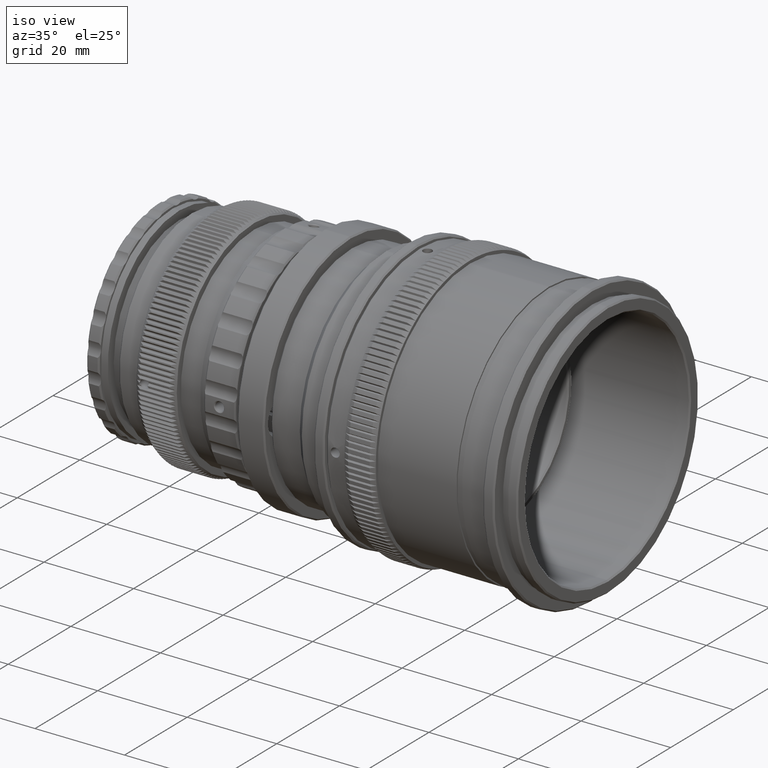
[diagram: clean part render]
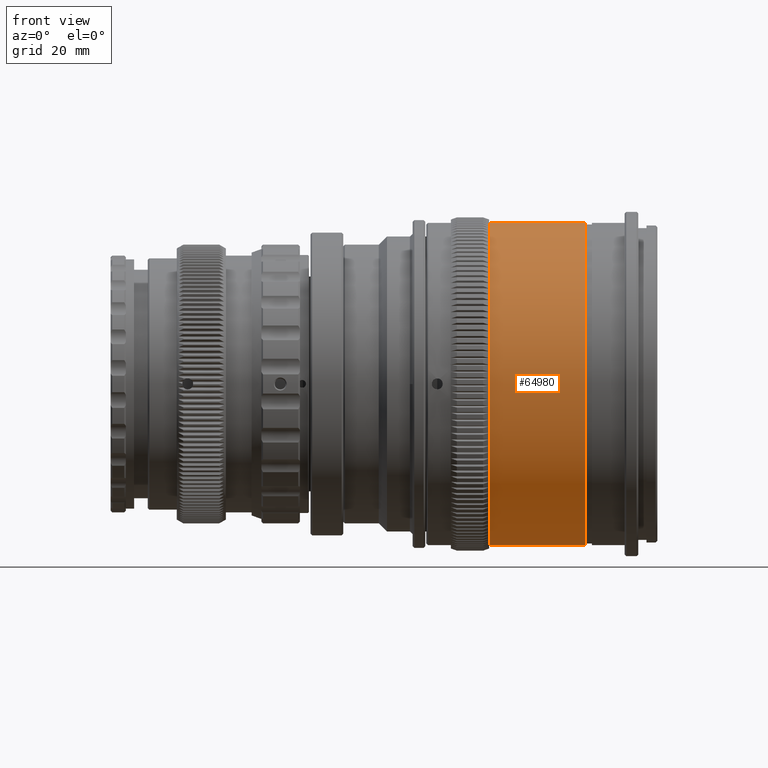
[diagram: tour spotlight — one face highlighted and labeled with its STEP entity id]
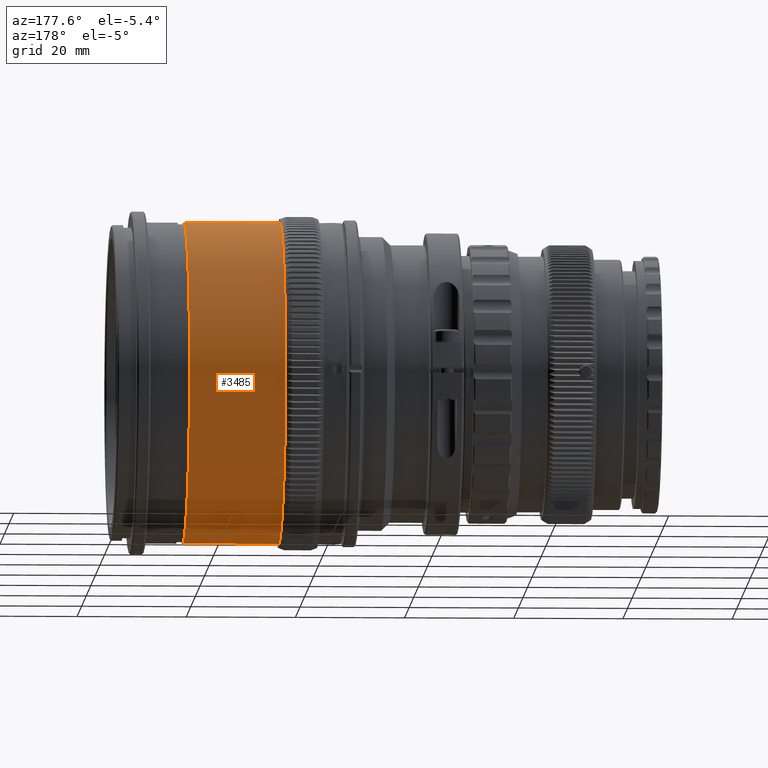
[diagram: tour spotlight — one face highlighted and labeled with its STEP entity id]
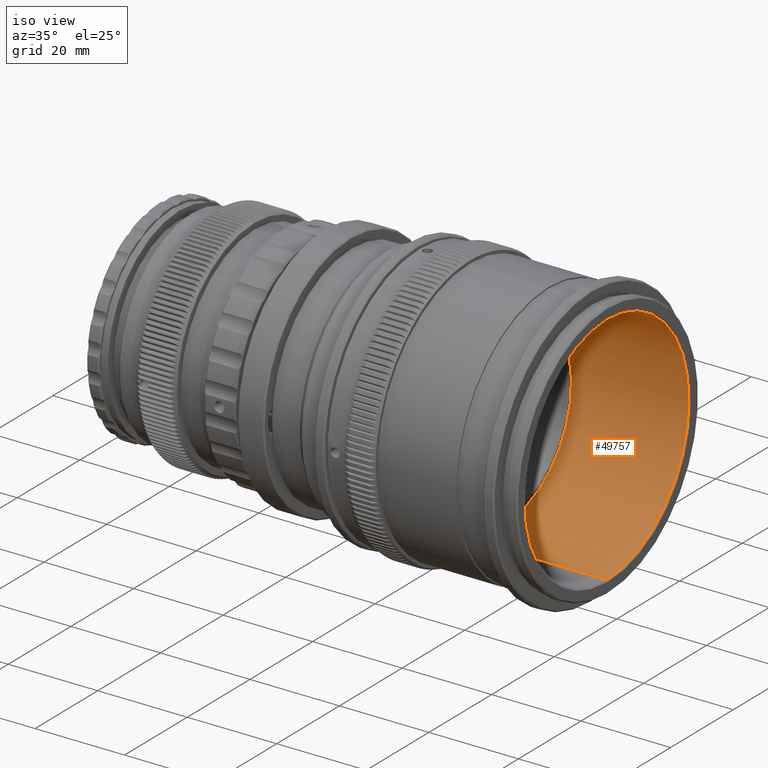
[diagram: tour spotlight — one face highlighted and labeled with its STEP entity id]
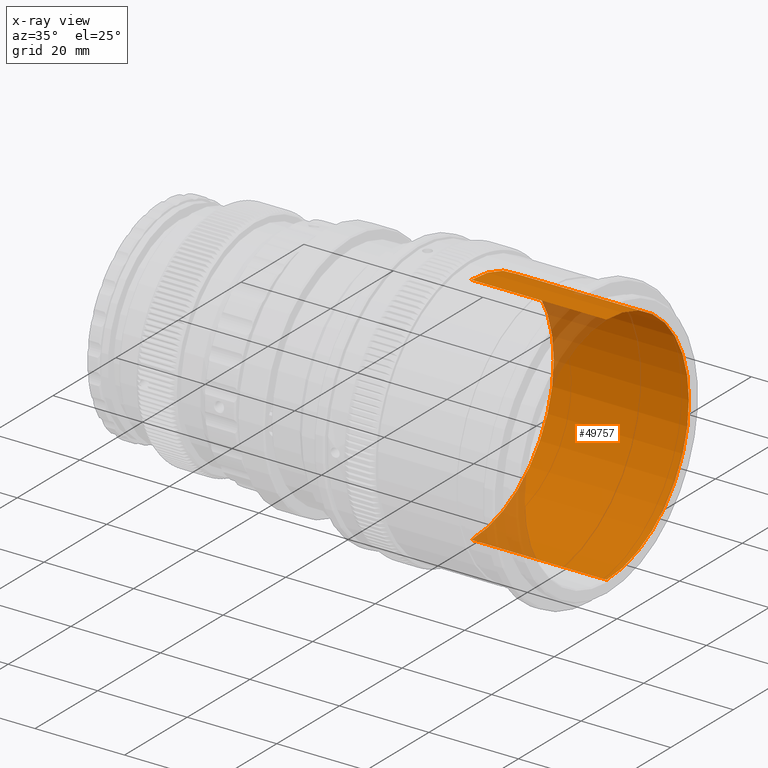
[diagram: x-ray of the same camera — body ghosted, this tour face saturated]
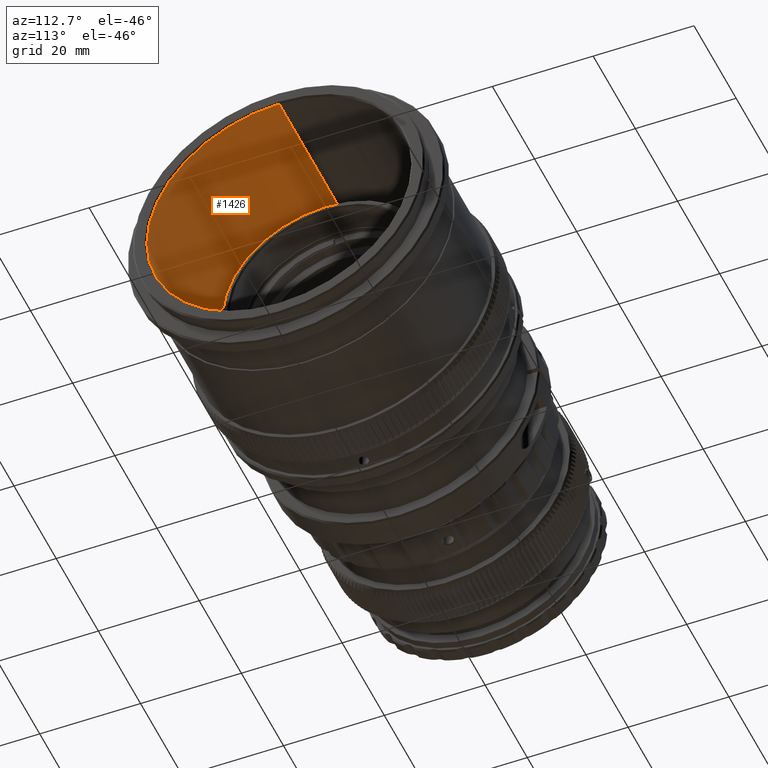
[diagram: tour spotlight — one face highlighted and labeled with its STEP entity id]
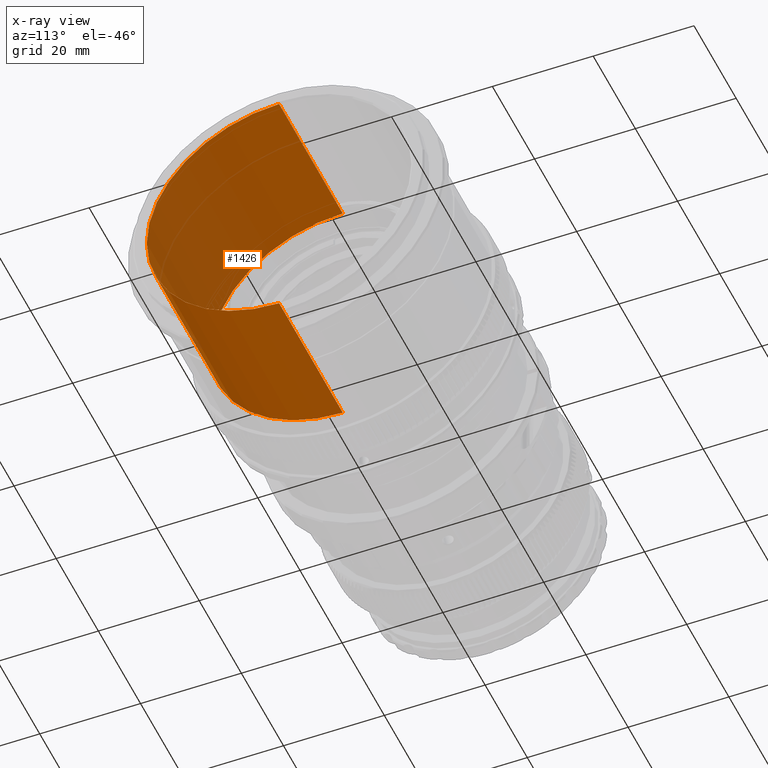
[diagram: x-ray of the same camera — body ghosted, this tour face saturated]
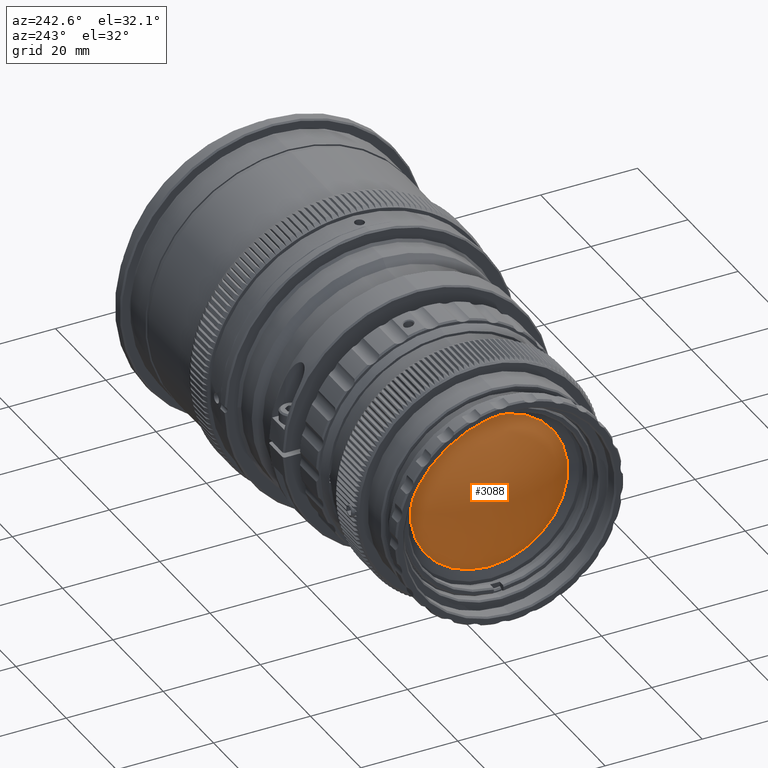
[diagram: tour spotlight — one face highlighted and labeled with its STEP entity id]
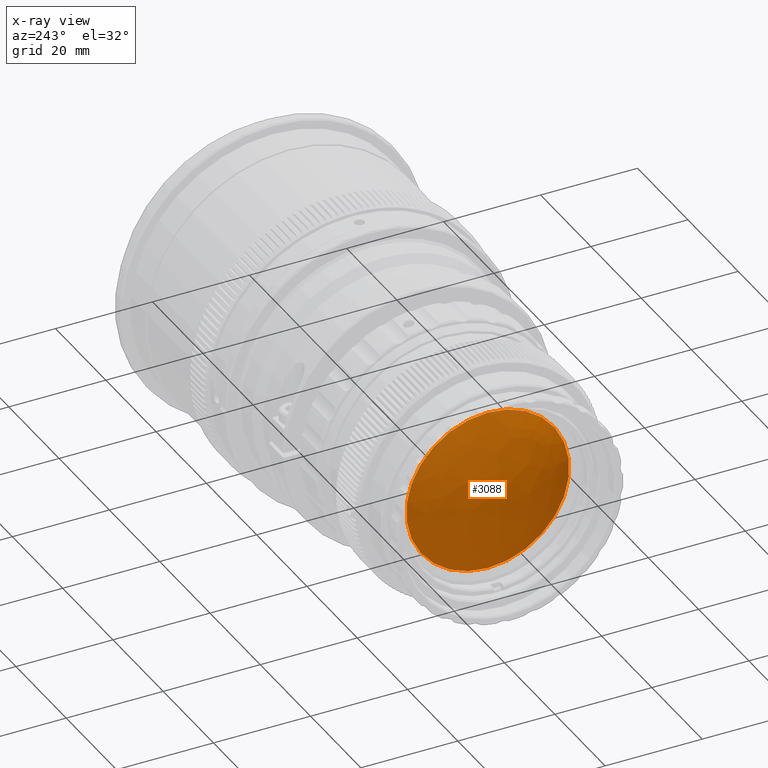
[diagram: x-ray of the same camera — body ghosted, this tour face saturated]
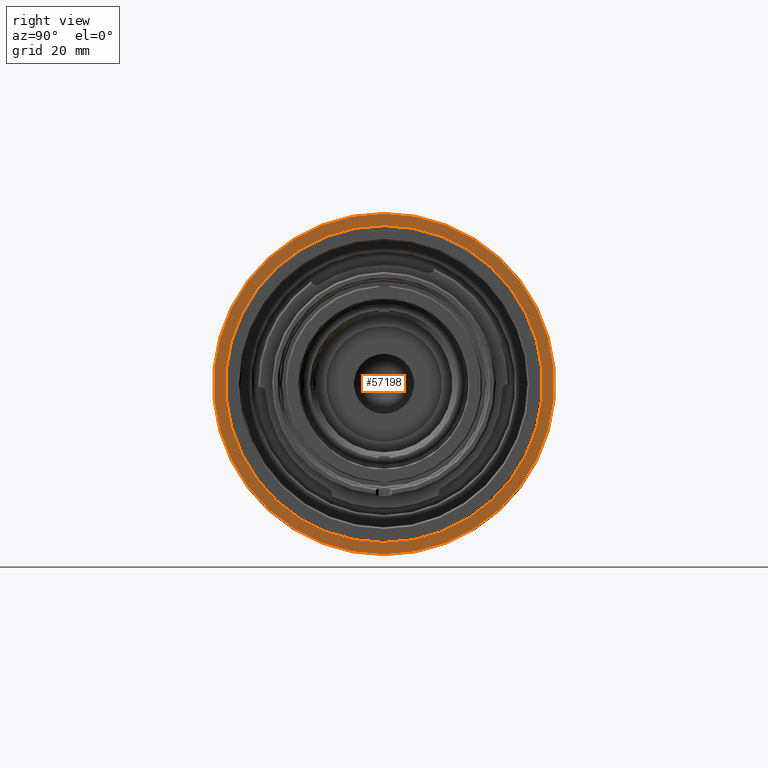
[diagram: tour spotlight — one face highlighted and labeled with its STEP entity id]
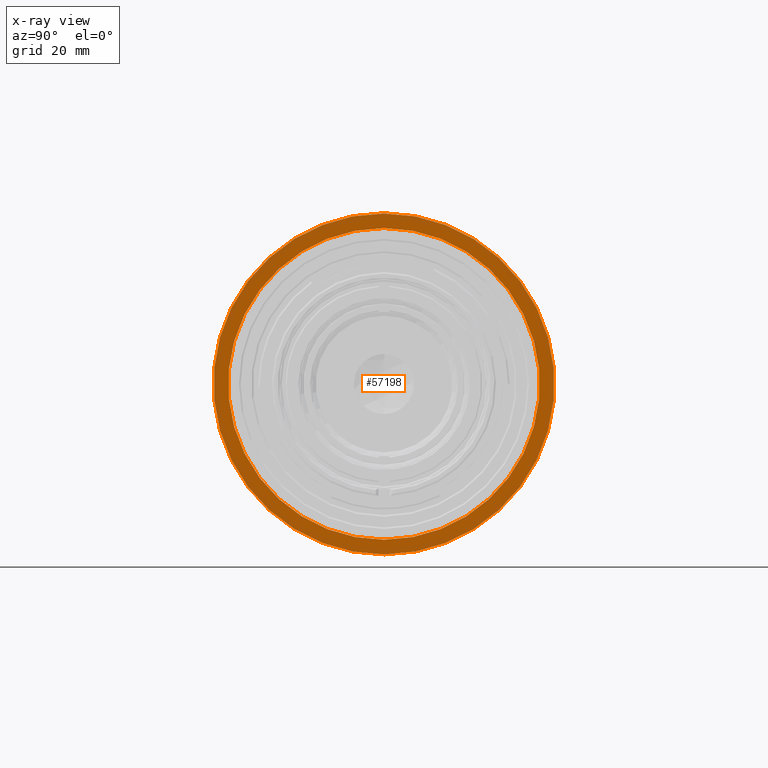
[diagram: x-ray of the same camera — body ghosted, this tour face saturated]
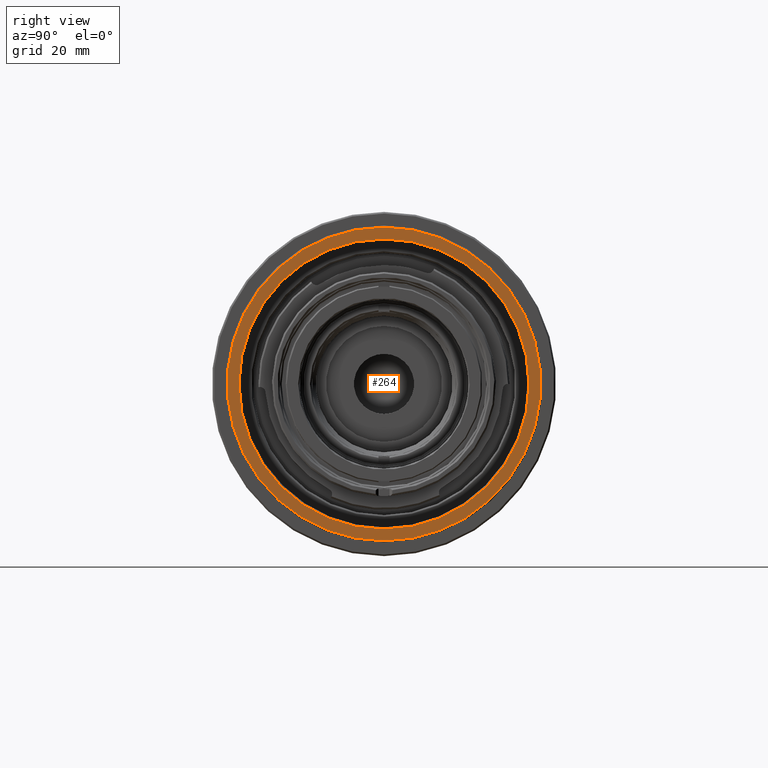
[diagram: tour spotlight — one face highlighted and labeled with its STEP entity id]
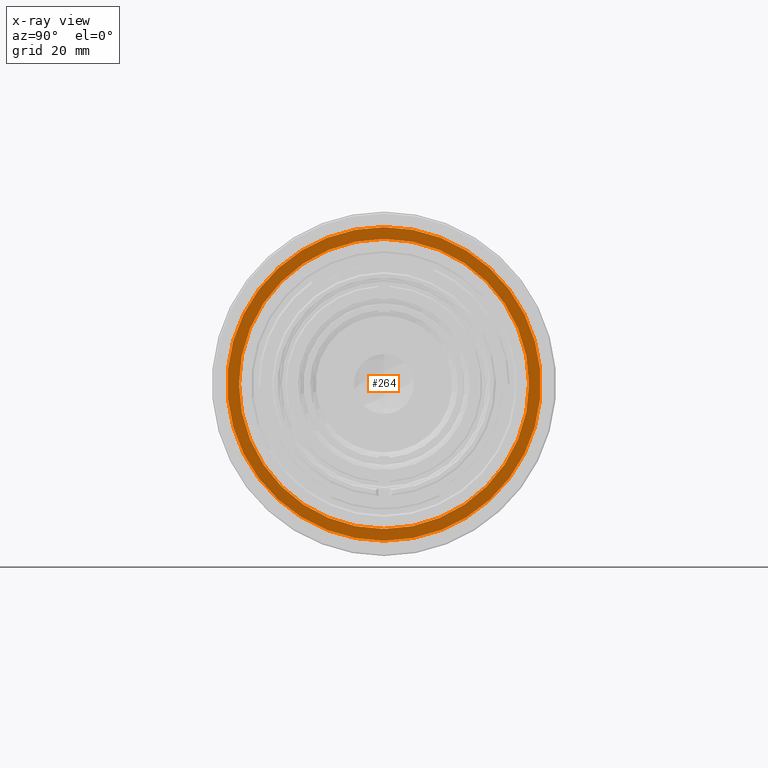
[diagram: x-ray of the same camera — body ghosted, this tour face saturated]
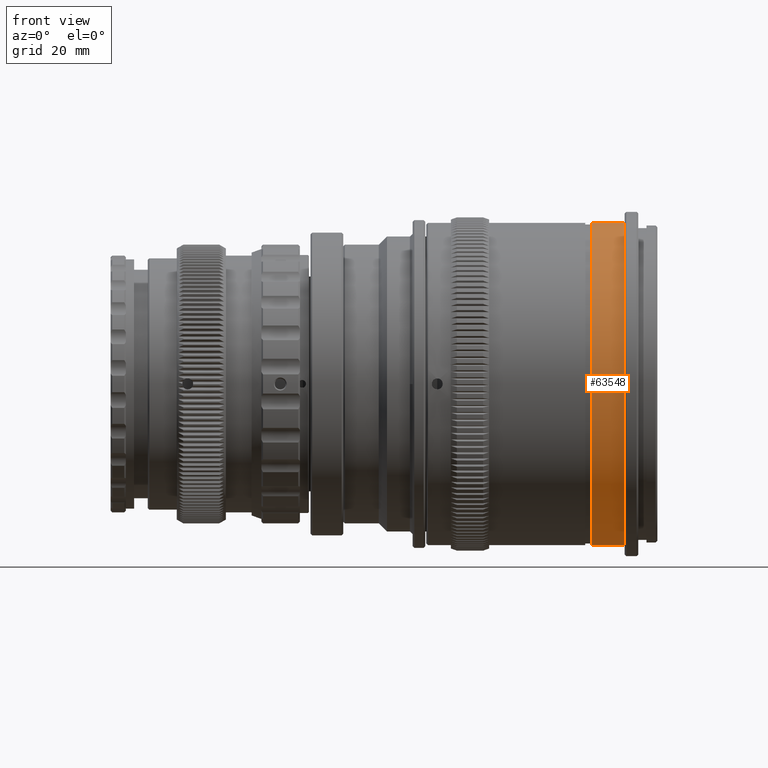
[diagram: tour spotlight — one face highlighted and labeled with its STEP entity id]
A machine part: a face-by-face anatomy tour. The part has 2368 B-rep faces; the first image is the clean iso view, then the 8 largest visible faces are spotlighted one at a time (largest first), each with its STEP entity span.

Face 1 — front view, entity #64980. In plain terms, the highlighted cylindrical surface (partial cylindrical patch) has radius 29.5 mm, axis along (-1, -0, -0).
Definition (entity closure, byte-faithful):
#3966 = EDGE_LOOP ( 'NONE', ( #13515, #9843, #66582, #7831 ) ) ;
#6857 = CARTESIAN_POINT ( 'NONE',  ( -4.299999999999998000, 0.0000000000000000000, 0.0000000000000000000 ) ) ;
#7192 = EDGE_CURVE ( 'NONE', #15851, #72297, #79895, .T. ) ;
#7831 = ORIENTED_EDGE ( 'NONE', *, *, #7192, .T. ) ;
#9843 = ORIENTED_EDGE ( 'NONE', *, *, #50375, .T. ) ;
#11036 = CARTESIAN_POINT ( 'NONE',  ( 24.80000000000000800, 0.0000000000000000000, 0.0000000000000000000 ) ) ;
#11347 = DIRECTION ( 'NONE',  ( -1.000000000000000000, -0.0000000000000000000, -0.0000000000000000000 ) ) ;
#11708 = AXIS2_PLACEMENT_3D ( 'NONE', #11036, #80174, #55532 ) ;
#11771 = VECTOR ( 'NONE', #11347, 1000.000000000000000 ) ;
#13515 = ORIENTED_EDGE ( 'NONE', *, *, #19650, .F. ) ;
#15071 = FACE_OUTER_BOUND ( 'NONE', #3966, .T. ) ;
#15851 = VERTEX_POINT ( 'NONE', #74180 ) ;
#19650 = EDGE_CURVE ( 'NONE', #61527, #72297, #71545, .T. ) ;
#26794 = CARTESIAN_POINT ( 'NONE',  ( 24.80000000000000800, 3.612708057484692400E-015, -29.50000000000000400 ) ) ;
#27278 = CIRCLE ( 'NONE', #11708, 29.50000000000000400 ) ;
#31887 = DIRECTION ( 'NONE',  ( -1.000000000000000000, -0.0000000000000000000, -0.0000000000000000000 ) ) ;
#32811 = DIRECTION ( 'NONE',  ( -1.000000000000000000, -0.0000000000000000000, -0.0000000000000000000 ) ) ;
#36718 = DIRECTION ( 'NONE',  ( 0.0000000000000000000, 0.0000000000000000000, 1.000000000000000000 ) ) ;
#38786 = DIRECTION ( 'NONE',  ( 0.0000000000000000000, 0.0000000000000000000, 1.000000000000000000 ) ) ;
#43524 = CARTESIAN_POINT ( 'NONE',  ( -4.299999999999998000, 0.0000000000000000000, 29.50000000000000400 ) ) ;
#48407 = CARTESIAN_POINT ( 'NONE',  ( 7.200000000000002000, 0.0000000000000000000, 0.0000000000000000000 ) ) ;
#50375 = EDGE_CURVE ( 'NONE', #61527, #80215, #27278, .T. ) ;
#53025 = CARTESIAN_POINT ( 'NONE',  ( 7.200000000000002000, 3.612708057484692400E-015, -29.50000000000000400 ) ) ;
#54650 = VECTOR ( 'NONE', #32811, 1000.000000000000000 ) ;
#55532 = DIRECTION ( 'NONE',  ( 0.0000000000000000000, 0.0000000000000000000, 1.000000000000000000 ) ) ;
#55720 = AXIS2_PLACEMENT_3D ( 'NONE', #48407, #73668, #36718 ) ;
#59941 = AXIS2_PLACEMENT_3D ( 'NONE', #6857, #31887, #38786 ) ;
#61527 = VERTEX_POINT ( 'NONE', #26794 ) ;
#64477 = LINE ( 'NONE', #43524, #11771 ) ;
#64980 = ADVANCED_FACE ( 'NONE', ( #15071 ), #65810, .T. ) ;
#65045 = CARTESIAN_POINT ( 'NONE',  ( -4.299999999999998000, 3.612708057484692400E-015, -29.50000000000000400 ) ) ;
#65810 = CYLINDRICAL_SURFACE ( 'NONE', #59941, 29.50000000000000400 ) ;
#66582 = ORIENTED_EDGE ( 'NONE', *, *, #79813, .T. ) ;
#71047 = CARTESIAN_POINT ( 'NONE',  ( 24.80000000000000800, 0.0000000000000000000, 29.50000000000000400 ) ) ;
#71545 = LINE ( 'NONE', #65045, #54650 ) ;
#72297 = VERTEX_POINT ( 'NONE', #53025 ) ;
#73668 = DIRECTION ( 'NONE',  ( 1.000000000000000000, 0.0000000000000000000, 0.0000000000000000000 ) ) ;
#74180 = CARTESIAN_POINT ( 'NONE',  ( 7.200000000000002000, 0.0000000000000000000, 29.50000000000000400 ) ) ;
#79813 = EDGE_CURVE ( 'NONE', #80215, #15851, #64477, .T. ) ;
#79895 = CIRCLE ( 'NONE', #55720, 29.50000000000000400 ) ;
#80174 = DIRECTION ( 'NONE',  ( -1.000000000000000000, -0.0000000000000000000, -0.0000000000000000000 ) ) ;
#80215 = VERTEX_POINT ( 'NONE', #71047 ) ;

Face 2 — auxiliary view, entity #3485. In plain terms, the highlighted cylindrical surface (partial cylindrical patch) has radius 29.5 mm, axis along (-1, -0, -0).
Definition (entity closure, byte-faithful):
#3485 = ADVANCED_FACE ( 'NONE', ( #56622 ), #68584, .T. ) ;
#5806 = CARTESIAN_POINT ( 'NONE',  ( 7.200000000000002000, 0.0000000000000000000, 0.0000000000000000000 ) ) ;
#6927 = ORIENTED_EDGE ( 'NONE', *, *, #81736, .T. ) ;
#11347 = DIRECTION ( 'NONE',  ( -1.000000000000000000, -0.0000000000000000000, -0.0000000000000000000 ) ) ;
#11771 = VECTOR ( 'NONE', #11347, 1000.000000000000000 ) ;
#12256 = EDGE_CURVE ( 'NONE', #72297, #15851, #21984, .T. ) ;
#15851 = VERTEX_POINT ( 'NONE', #74180 ) ;
#19650 = EDGE_CURVE ( 'NONE', #61527, #72297, #71545, .T. ) ;
#19934 = DIRECTION ( 'NONE',  ( -1.000000000000000000, -0.0000000000000000000, -0.0000000000000000000 ) ) ;
#21984 = CIRCLE ( 'NONE', #54232, 29.50000000000000400 ) ;
#25316 = ORIENTED_EDGE ( 'NONE', *, *, #12256, .T. ) ;
#25458 = CIRCLE ( 'NONE', #70480, 29.50000000000000400 ) ;
#26794 = CARTESIAN_POINT ( 'NONE',  ( 24.80000000000000800, 3.612708057484692400E-015, -29.50000000000000400 ) ) ;
#29855 = AXIS2_PLACEMENT_3D ( 'NONE', #54330, #41778, #74582 ) ;
#32811 = DIRECTION ( 'NONE',  ( -1.000000000000000000, -0.0000000000000000000, -0.0000000000000000000 ) ) ;
#41778 = DIRECTION ( 'NONE',  ( -1.000000000000000000, -0.0000000000000000000, -0.0000000000000000000 ) ) ;
#42903 = ORIENTED_EDGE ( 'NONE', *, *, #19650, .T. ) ;
#43524 = CARTESIAN_POINT ( 'NONE',  ( -4.299999999999998000, 0.0000000000000000000, 29.50000000000000400 ) ) ;
#44098 = DIRECTION ( 'NONE',  ( 0.0000000000000000000, 0.0000000000000000000, 1.000000000000000000 ) ) ;
#53025 = CARTESIAN_POINT ( 'NONE',  ( 7.200000000000002000, 3.612708057484692400E-015, -29.50000000000000400 ) ) ;
#54232 = AXIS2_PLACEMENT_3D ( 'NONE', #5806, #75794, #44098 ) ;
#54330 = CARTESIAN_POINT ( 'NONE',  ( -4.299999999999998000, 0.0000000000000000000, 0.0000000000000000000 ) ) ;
#54650 = VECTOR ( 'NONE', #32811, 1000.000000000000000 ) ;
#56622 = FACE_OUTER_BOUND ( 'NONE', #66785, .T. ) ;
#57776 = CARTESIAN_POINT ( 'NONE',  ( 24.80000000000000800, 0.0000000000000000000, 0.0000000000000000000 ) ) ;
#61527 = VERTEX_POINT ( 'NONE', #26794 ) ;
#64415 = DIRECTION ( 'NONE',  ( 0.0000000000000000000, 0.0000000000000000000, 1.000000000000000000 ) ) ;
#64477 = LINE ( 'NONE', #43524, #11771 ) ;
#65045 = CARTESIAN_POINT ( 'NONE',  ( -4.299999999999998000, 3.612708057484692400E-015, -29.50000000000000400 ) ) ;
#66785 = EDGE_LOOP ( 'NONE', ( #6927, #42903, #25316, #67859 ) ) ;
#67859 = ORIENTED_EDGE ( 'NONE', *, *, #79813, .F. ) ;
#68584 = CYLINDRICAL_SURFACE ( 'NONE', #29855, 29.50000000000000400 ) ;
#70480 = AXIS2_PLACEMENT_3D ( 'NONE', #57776, #19934, #64415 ) ;
#71047 = CARTESIAN_POINT ( 'NONE',  ( 24.80000000000000800, 0.0000000000000000000, 29.50000000000000400 ) ) ;
#71545 = LINE ( 'NONE', #65045, #54650 ) ;
#72297 = VERTEX_POINT ( 'NONE', #53025 ) ;
#74180 = CARTESIAN_POINT ( 'NONE',  ( 7.200000000000002000, 0.0000000000000000000, 29.50000000000000400 ) ) ;
#74582 = DIRECTION ( 'NONE',  ( 0.0000000000000000000, 0.0000000000000000000, 1.000000000000000000 ) ) ;
#75794 = DIRECTION ( 'NONE',  ( 1.000000000000000000, 0.0000000000000000000, 0.0000000000000000000 ) ) ;
#79813 = EDGE_CURVE ( 'NONE', #80215, #15851, #64477, .T. ) ;
#80215 = VERTEX_POINT ( 'NONE', #71047 ) ;
#81736 = EDGE_CURVE ( 'NONE', #80215, #61527, #25458, .T. ) ;

Face 3 — iso view, entity #49757. An x-ray twin of the same camera follows (body ghosted, this face saturated) — the face is partly hidden behind the body. In plain terms, the highlighted cylindrical surface (partial cylindrical patch) has radius 26.25 mm, axis along (-1, -0, -0).
Definition (entity closure, byte-faithful):
#1156 = EDGE_CURVE ( 'NONE', #71741, #21495, #44899, .T. ) ;
#2117 = DIRECTION ( 'NONE',  ( 1.000000000000000000, 0.0000000000000000000, 0.0000000000000000000 ) ) ;
#6480 = VERTEX_POINT ( 'NONE', #14700 ) ;
#8437 = LINE ( 'NONE', #47348, #70091 ) ;
#13951 = CARTESIAN_POINT ( 'NONE',  ( 37.69999999999998900, 3.233067549749012800E-015, 26.25000000000000000 ) ) ;
#14700 = CARTESIAN_POINT ( 'NONE',  ( 7.500000000000001800, 3.214697847761802000E-015, -26.25000000000000000 ) ) ;
#18753 = ORIENTED_EDGE ( 'NONE', *, *, #52681, .F. ) ;
#19147 = CARTESIAN_POINT ( 'NONE',  ( 37.69999999999998900, 0.0000000000000000000, -26.25000000000000000 ) ) ;
#21495 = VERTEX_POINT ( 'NONE', #50921 ) ;
#22282 = FACE_OUTER_BOUND ( 'NONE', #78369, .T. ) ;
#33270 = DIRECTION ( 'NONE',  ( 0.0000000000000000000, 0.0000000000000000000, 1.000000000000000000 ) ) ;
#35275 = CYLINDRICAL_SURFACE ( 'NONE', #74515, 26.25000000000000000 ) ;
#35628 = ORIENTED_EDGE ( 'NONE', *, *, #1156, .T. ) ;
#36355 = ORIENTED_EDGE ( 'NONE', *, *, #73697, .F. ) ;
#39290 = CARTESIAN_POINT ( 'NONE',  ( -4.299999999999998000, 0.0000000000000000000, 0.0000000000000000000 ) ) ;
#43580 = DIRECTION ( 'NONE',  ( 0.0000000000000000000, 0.0000000000000000000, 1.000000000000000000 ) ) ;
#44899 = LINE ( 'NONE', #77148, #53906 ) ;
#47348 = CARTESIAN_POINT ( 'NONE',  ( -4.299999999999998000, 3.214697847761802000E-015, -26.25000000000000000 ) ) ;
#49757 = ADVANCED_FACE ( 'NONE', ( #22282 ), #35275, .F. ) ;
#49773 = DIRECTION ( 'NONE',  ( -1.000000000000000000, -0.0000000000000000000, -0.0000000000000000000 ) ) ;
#50921 = CARTESIAN_POINT ( 'NONE',  ( 7.500000000000001800, 0.0000000000000000000, 26.25000000000000000 ) ) ;
#52681 = EDGE_CURVE ( 'NONE', #73167, #6480, #8437, .T. ) ;
#53906 = VECTOR ( 'NONE', #64996, 1000.000000000000000 ) ;
#60131 = CIRCLE ( 'NONE', #81028, 26.25000000000000000 ) ;
#60701 = DIRECTION ( 'NONE',  ( -1.000000000000000000, -0.0000000000000000000, -0.0000000000000000000 ) ) ;
#64996 = DIRECTION ( 'NONE',  ( -1.000000000000000000, -0.0000000000000000000, -0.0000000000000000000 ) ) ;
#65231 = CARTESIAN_POINT ( 'NONE',  ( 7.500000000000001800, 0.0000000000000000000, 0.0000000000000000000 ) ) ;
#65443 = ORIENTED_EDGE ( 'NONE', *, *, #72133, .F. ) ;
#70091 = VECTOR ( 'NONE', #60701, 1000.000000000000000 ) ;
#71741 = VERTEX_POINT ( 'NONE', #13951 ) ;
#71830 = DIRECTION ( 'NONE',  ( -1.000000000000000000, -0.0000000000000000000, -0.0000000000000000000 ) ) ;
#72133 = EDGE_CURVE ( 'NONE', #71741, #73167, #73917, .T. ) ;
#73167 = VERTEX_POINT ( 'NONE', #19147 ) ;
#73697 = EDGE_CURVE ( 'NONE', #6480, #21495, #60131, .T. ) ;
#73917 = CIRCLE ( 'NONE', #81499, 26.25000000000000000 ) ;
#74515 = AXIS2_PLACEMENT_3D ( 'NONE', #39290, #71830, #77588 ) ;
#75020 = CARTESIAN_POINT ( 'NONE',  ( 37.69999999999998900, 0.0000000000000000000, 0.0000000000000000000 ) ) ;
#77148 = CARTESIAN_POINT ( 'NONE',  ( -4.299999999999998000, 0.0000000000000000000, 26.25000000000000000 ) ) ;
#77588 = DIRECTION ( 'NONE',  ( 0.0000000000000000000, 0.0000000000000000000, 1.000000000000000000 ) ) ;
#78369 = EDGE_LOOP ( 'NONE', ( #18753, #65443, #35628, #36355 ) ) ;
#81028 = AXIS2_PLACEMENT_3D ( 'NONE', #65231, #2117, #33270 ) ;
#81499 = AXIS2_PLACEMENT_3D ( 'NONE', #75020, #49773, #43580 ) ;

Face 4 — auxiliary view, entity #1426. An x-ray twin of the same camera follows (body ghosted, this face saturated) — the face is partly hidden behind the body. In plain terms, the highlighted cylindrical surface (partial cylindrical patch) has radius 26.25 mm, axis along (-1, -0, -0).
Definition (entity closure, byte-faithful):
#1156 = EDGE_CURVE ( 'NONE', #71741, #21495, #44899, .T. ) ;
#1426 = ADVANCED_FACE ( 'NONE', ( #17051 ), #49852, .F. ) ;
#2597 = DIRECTION ( 'NONE',  ( -1.000000000000000000, -0.0000000000000000000, -0.0000000000000000000 ) ) ;
#6480 = VERTEX_POINT ( 'NONE', #14700 ) ;
#8437 = LINE ( 'NONE', #47348, #70091 ) ;
#11390 = ORIENTED_EDGE ( 'NONE', *, *, #1156, .F. ) ;
#13951 = CARTESIAN_POINT ( 'NONE',  ( 37.69999999999998900, 3.233067549749012800E-015, 26.25000000000000000 ) ) ;
#14387 = AXIS2_PLACEMENT_3D ( 'NONE', #41455, #2597, #27904 ) ;
#14568 = EDGE_CURVE ( 'NONE', #21495, #6480, #65196, .T. ) ;
#14700 = CARTESIAN_POINT ( 'NONE',  ( 7.500000000000001800, 3.214697847761802000E-015, -26.25000000000000000 ) ) ;
#17051 = FACE_OUTER_BOUND ( 'NONE', #67755, .T. ) ;
#19147 = CARTESIAN_POINT ( 'NONE',  ( 37.69999999999998900, 0.0000000000000000000, -26.25000000000000000 ) ) ;
#21495 = VERTEX_POINT ( 'NONE', #50921 ) ;
#27904 = DIRECTION ( 'NONE',  ( 0.0000000000000000000, 0.0000000000000000000, 1.000000000000000000 ) ) ;
#37721 = ORIENTED_EDGE ( 'NONE', *, *, #78059, .F. ) ;
#39958 = AXIS2_PLACEMENT_3D ( 'NONE', #55660, #82427, #50611 ) ;
#41455 = CARTESIAN_POINT ( 'NONE',  ( 37.69999999999998900, 0.0000000000000000000, 0.0000000000000000000 ) ) ;
#44899 = LINE ( 'NONE', #77148, #53906 ) ;
#47348 = CARTESIAN_POINT ( 'NONE',  ( -4.299999999999998000, 3.214697847761802000E-015, -26.25000000000000000 ) ) ;
#47740 = DIRECTION ( 'NONE',  ( 0.0000000000000000000, 0.0000000000000000000, 1.000000000000000000 ) ) ;
#47881 = AXIS2_PLACEMENT_3D ( 'NONE', #48585, #48859, #47740 ) ;
#48585 = CARTESIAN_POINT ( 'NONE',  ( -4.299999999999998000, 0.0000000000000000000, 0.0000000000000000000 ) ) ;
#48859 = DIRECTION ( 'NONE',  ( -1.000000000000000000, -0.0000000000000000000, -0.0000000000000000000 ) ) ;
#49852 = CYLINDRICAL_SURFACE ( 'NONE', #47881, 26.25000000000000000 ) ;
#50611 = DIRECTION ( 'NONE',  ( 0.0000000000000000000, 0.0000000000000000000, 1.000000000000000000 ) ) ;
#50921 = CARTESIAN_POINT ( 'NONE',  ( 7.500000000000001800, 0.0000000000000000000, 26.25000000000000000 ) ) ;
#52681 = EDGE_CURVE ( 'NONE', #73167, #6480, #8437, .T. ) ;
#53216 = ORIENTED_EDGE ( 'NONE', *, *, #52681, .T. ) ;
#53906 = VECTOR ( 'NONE', #64996, 1000.000000000000000 ) ;
#55660 = CARTESIAN_POINT ( 'NONE',  ( 7.500000000000001800, 0.0000000000000000000, 0.0000000000000000000 ) ) ;
#60701 = DIRECTION ( 'NONE',  ( -1.000000000000000000, -0.0000000000000000000, -0.0000000000000000000 ) ) ;
#63584 = CIRCLE ( 'NONE', #14387, 26.25000000000000000 ) ;
#64996 = DIRECTION ( 'NONE',  ( -1.000000000000000000, -0.0000000000000000000, -0.0000000000000000000 ) ) ;
#65196 = CIRCLE ( 'NONE', #39958, 26.25000000000000000 ) ;
#67755 = EDGE_LOOP ( 'NONE', ( #37721, #53216, #76187, #11390 ) ) ;
#70091 = VECTOR ( 'NONE', #60701, 1000.000000000000000 ) ;
#71741 = VERTEX_POINT ( 'NONE', #13951 ) ;
#73167 = VERTEX_POINT ( 'NONE', #19147 ) ;
#76187 = ORIENTED_EDGE ( 'NONE', *, *, #14568, .F. ) ;
#77148 = CARTESIAN_POINT ( 'NONE',  ( -4.299999999999998000, 0.0000000000000000000, 26.25000000000000000 ) ) ;
#78059 = EDGE_CURVE ( 'NONE', #73167, #71741, #63584, .T. ) ;
#82427 = DIRECTION ( 'NONE',  ( 1.000000000000000000, 0.0000000000000000000, 0.0000000000000000000 ) ) ;

Face 5 — auxiliary view, entity #3088. An x-ray twin of the same camera follows (body ghosted, this face saturated) — the face is partly hidden behind the body. In plain terms, the highlighted face is a freeform B-spline surface patch.
Definition (entity closure, byte-faithful):
#148 = CARTESIAN_POINT ( 'NONE',  ( -63.36797159681891100, -6.620438599466115000, 6.998221560886744200 ) ) ;
#3088 = ADVANCED_FACE ( 'NONE', ( #11854 ), #64847, .T. ) ;
#5168 = EDGE_LOOP ( 'NONE', ( #6973, #60008 ) ) ;
#5975 = DIRECTION ( 'NONE',  ( 0.0000000000000000000, 0.0000000000000000000, 1.000000000000000000 ) ) ;
#6572 = CARTESIAN_POINT ( 'NONE',  ( -48.57975570049903500, -17.10335504868697500, 13.53687182445587700 ) ) ;
#6973 = ORIENTED_EDGE ( 'NONE', *, *, #56017, .T. ) ;
#11138 = EDGE_CURVE ( 'NONE', #65336, #38575, #52783, .T. ) ;
#11854 = FACE_OUTER_BOUND ( 'NONE', #5168, .T. ) ;
#13210 = CARTESIAN_POINT ( 'NONE',  ( -48.62293504010720800, 17.03185515266493500, 13.56914858453295900 ) ) ;
#19049 = CARTESIAN_POINT ( 'NONE',  ( -54.94792044532978500, 6.523943668880155800, 18.29710501619667800 ) ) ;
#20711 = CARTESIAN_POINT ( 'NONE',  ( -53.30633380682680700, 1.781318394342134800E-013, -16.80000000000000100 ) ) ;
#23208 = CARTESIAN_POINT ( 'NONE',  ( -53.30633380682680700, 1.760744328116459200E-013, 0.0000000000000000000 ) ) ;
#25165 = CARTESIAN_POINT ( 'NONE',  ( -54.86877491857204300, 17.03185515266493900, -5.263715077854394400 ) ) ;
#25431 = CARTESIAN_POINT ( 'NONE',  ( -54.88383556624403100, 17.03185515266493900, 5.193414792622568200 ) ) ;
#27553 = CARTESIAN_POINT ( 'NONE',  ( -53.30633380682680700, 1.760744328116459200E-013, 16.80000000000000100 ) ) ;
#31306 = CARTESIAN_POINT ( 'NONE',  ( -63.39033329894579100, 6.523943668880155800, 7.002978503868683400 ) ) ;
#34856 = CIRCLE ( 'NONE', #55705, 16.80000000000000100 ) ;
#35489 = DIRECTION ( 'NONE',  ( -1.000000000000000000, -0.0000000000000000000, -0.0000000000000000000 ) ) ;
#38484 = CARTESIAN_POINT ( 'NONE',  ( -54.89511501590642000, 6.523943668880155800, -18.36753553398058600 ) ) ;
#38575 = VERTEX_POINT ( 'NONE', #27553 ) ;
#41887 = AXIS2_PLACEMENT_3D ( 'NONE', #50720, #69633, #5975 ) ;
#44321 = CARTESIAN_POINT ( 'NONE',  ( -54.82576350268273300, -17.10335504868697500, 5.181061283321825300 ) ) ;
#44860 = CARTESIAN_POINT ( 'NONE',  ( -48.54068829999459900, -17.10335504868697500, -13.58897891412536100 ) ) ;
#50492 = CARTESIAN_POINT ( 'NONE',  ( -54.81073867958059500, -17.10335504868697500, -5.251194346164885100 ) ) ;
#50720 = CARTESIAN_POINT ( 'NONE',  ( -53.30633380682680700, 1.760744328116459200E-013, 0.0000000000000000000 ) ) ;
#51029 = CARTESIAN_POINT ( 'NONE',  ( -63.34767709821487400, -6.620438599466115000, -7.092952482927602300 ) ) ;
#52783 = CIRCLE ( 'NONE', #41887, 16.80000000000000100 ) ;
#55705 = AXIS2_PLACEMENT_3D ( 'NONE', #23208, #35489, #79836 ) ;
#56017 = EDGE_CURVE ( 'NONE', #38575, #65336, #34856, .T. ) ;
#60008 = ORIENTED_EDGE ( 'NONE', *, *, #11138, .T. ) ;
#63005 = CARTESIAN_POINT ( 'NONE',  ( -48.58377448890080100, 17.03185515266493500, -13.62137991620262200 ) ) ;
#64847 =( BOUNDED_SURFACE ( )  B_SPLINE_SURFACE ( 3, 3, ( 
 ( #63005, #25165, #25431, #13210 ),
 ( #38484, #76518, #31306, #19049 ),
 ( #75744, #51029, #148, #69948 ),
 ( #44860, #50492, #44321, #6572 ) ),
 .UNSPECIFIED., .F., .F., .F. ) 
 B_SPLINE_SURFACE_WITH_KNOTS ( ( 4, 4 ),
 ( 4, 4 ),
 ( 0.0000000000000000000, 1.000000000000000000 ),
 ( 0.0000000000000000000, 1.000000000000000000 ),
 .UNSPECIFIED. ) 
 GEOMETRIC_REPRESENTATION_ITEM ( )  RATIONAL_B_SPLINE_SURFACE ( (
 ( 1.000000000000000000, 0.8667301269570817400, 0.8667301269570817400, 1.000000000000000000),
 ( 0.8656476331985270000, 0.7502828830222566500, 0.7502828830222566500, 0.8656476331985270000),
 ( 0.8656476331985270000, 0.7502828830222566500, 0.7502828830222566500, 0.8656476331985270000),
 ( 1.000000000000000000, 0.8667301269570817400, 0.8667301269570817400, 1.000000000000000000) ) ) 
 REPRESENTATION_ITEM ( '' )  SURFACE ( )  );
#65336 = VERTEX_POINT ( 'NONE', #20711 ) ;
#69633 = DIRECTION ( 'NONE',  ( -1.000000000000000000, -0.0000000000000000000, -0.0000000000000000000 ) ) ;
#69948 = CARTESIAN_POINT ( 'NONE',  ( -54.93129345687545100, -6.620438599466116800, 18.28467626388098900 ) ) ;
#75744 = CARTESIAN_POINT ( 'NONE',  ( -54.87852389682061700, -6.620438599466116800, -18.35505894002763900 ) ) ;
#76518 = CARTESIAN_POINT ( 'NONE',  ( -63.37002500544089400, 6.523943668880155800, -7.097773817925557600 ) ) ;
#79836 = DIRECTION ( 'NONE',  ( 0.0000000000000000000, 0.0000000000000000000, 1.000000000000000000 ) ) ;

Face 6 — right view, entity #57198. An x-ray twin of the same camera follows (body ghosted, this face saturated) — the face is partly hidden behind the body. In plain terms, the highlighted planar face has unit normal (-1, 0, 0).
Definition (entity closure, byte-faithful):
#1675 = CIRCLE ( 'NONE', #52009, 28.52500000000000200 ) ;
#1695 = CARTESIAN_POINT ( 'NONE',  ( 34.50000000000001400, 0.0000000000000000000, 0.0000000000000000000 ) ) ;
#7209 = VERTEX_POINT ( 'NONE', #10034 ) ;
#7798 = FACE_BOUND ( 'NONE', #11753, .T. ) ;
#10034 = CARTESIAN_POINT ( 'NONE',  ( 34.50000000000001400, 3.839267715326952300E-015, -31.19999999999999200 ) ) ;
#10590 = DIRECTION ( 'NONE',  ( 0.0000000000000000000, 0.0000000000000000000, 1.000000000000000000 ) ) ;
#11753 = EDGE_LOOP ( 'NONE', ( #71497, #52757 ) ) ;
#14562 = CARTESIAN_POINT ( 'NONE',  ( 34.50000000000001400, 0.0000000000000000000, 31.19999999999999200 ) ) ;
#17930 = AXIS2_PLACEMENT_3D ( 'NONE', #79157, #74492, #10590 ) ;
#18267 = VERTEX_POINT ( 'NONE', #14562 ) ;
#21515 = EDGE_CURVE ( 'NONE', #63633, #28871, #1675, .T. ) ;
#22768 = CARTESIAN_POINT ( 'NONE',  ( 34.50000000000001400, 0.0000000000000000000, 0.0000000000000000000 ) ) ;
#23201 = EDGE_LOOP ( 'NONE', ( #46422, #47227 ) ) ;
#28871 = VERTEX_POINT ( 'NONE', #35067 ) ;
#34510 = DIRECTION ( 'NONE',  ( 1.000000000000000000, 0.0000000000000000000, 0.0000000000000000000 ) ) ;
#35067 = CARTESIAN_POINT ( 'NONE',  ( 34.50000000000001400, 0.0000000000000000000, 28.52500000000000200 ) ) ;
#37900 = DIRECTION ( 'NONE',  ( 0.0000000000000000000, 0.0000000000000000000, 1.000000000000000000 ) ) ;
#38599 = CARTESIAN_POINT ( 'NONE',  ( 34.50000000000001400, 3.493304994567825800E-015, -28.52500000000000200 ) ) ;
#40837 = DIRECTION ( 'NONE',  ( 0.0000000000000000000, 0.0000000000000000000, 1.000000000000000000 ) ) ;
#41320 = DIRECTION ( 'NONE',  ( -1.000000000000000000, 0.0000000000000000000, 0.0000000000000000000 ) ) ;
#41872 = CARTESIAN_POINT ( 'NONE',  ( 34.50000000000001400, 0.0000000000000000000, 0.0000000000000000000 ) ) ;
#43557 = FACE_OUTER_BOUND ( 'NONE', #23201, .T. ) ;
#44180 = AXIS2_PLACEMENT_3D ( 'NONE', #22768, #34510, #40837 ) ;
#44796 = DIRECTION ( 'NONE',  ( -1.000000000000000000, 0.0000000000000000000, 0.0000000000000000000 ) ) ;
#45288 = DIRECTION ( 'NONE',  ( 0.0000000000000000000, 0.0000000000000000000, 1.000000000000000000 ) ) ;
#45441 = CIRCLE ( 'NONE', #66638, 31.19999999999999200 ) ;
#46422 = ORIENTED_EDGE ( 'NONE', *, *, #67642, .F. ) ;
#47227 = ORIENTED_EDGE ( 'NONE', *, *, #79471, .F. ) ;
#52009 = AXIS2_PLACEMENT_3D ( 'NONE', #1695, #58140, #45288 ) ;
#52757 = ORIENTED_EDGE ( 'NONE', *, *, #21515, .F. ) ;
#57198 = ADVANCED_FACE ( 'NONE', ( #7798, #43557 ), #73673, .F. ) ;
#58140 = DIRECTION ( 'NONE',  ( 1.000000000000000000, 0.0000000000000000000, 0.0000000000000000000 ) ) ;
#59453 = CIRCLE ( 'NONE', #44180, 28.52500000000000200 ) ;
#63633 = VERTEX_POINT ( 'NONE', #38599 ) ;
#66638 = AXIS2_PLACEMENT_3D ( 'NONE', #76464, #44796, #37900 ) ;
#67642 = EDGE_CURVE ( 'NONE', #18267, #7209, #77439, .T. ) ;
#68619 = AXIS2_PLACEMENT_3D ( 'NONE', #41872, #41320, #80442 ) ;
#70078 = EDGE_CURVE ( 'NONE', #28871, #63633, #59453, .T. ) ;
#71497 = ORIENTED_EDGE ( 'NONE', *, *, #70078, .F. ) ;
#73673 = PLANE ( 'NONE',  #17930 ) ;
#74492 = DIRECTION ( 'NONE',  ( -1.000000000000000000, 0.0000000000000000000, 0.0000000000000000000 ) ) ;
#76464 = CARTESIAN_POINT ( 'NONE',  ( 34.50000000000001400, 0.0000000000000000000, 0.0000000000000000000 ) ) ;
#77439 = CIRCLE ( 'NONE', #68619, 31.19999999999999200 ) ;
#79157 = CARTESIAN_POINT ( 'NONE',  ( 34.50000000000001400, 31.50000000000000700, 0.0000000000000000000 ) ) ;
#79471 = EDGE_CURVE ( 'NONE', #7209, #18267, #45441, .T. ) ;
#80442 = DIRECTION ( 'NONE',  ( 0.0000000000000000000, 0.0000000000000000000, 1.000000000000000000 ) ) ;

Face 7 — right view, entity #264. An x-ray twin of the same camera follows (body ghosted, this face saturated) — the face is partly hidden behind the body. In plain terms, the highlighted planar face has unit normal (-1, 0, 0).
Definition (entity closure, byte-faithful):
#264 = ADVANCED_FACE ( 'NONE', ( #80755, #40059 ), #22274, .F. ) ;
#2923 = CIRCLE ( 'NONE', #35018, 28.69999999999998900 ) ;
#5660 = DIRECTION ( 'NONE',  ( -1.000000000000000000, 0.0000000000000000000, 0.0000000000000000000 ) ) ;
#5907 = DIRECTION ( 'NONE',  ( -1.000000000000000000, -0.0000000000000000000, -0.0000000000000000000 ) ) ;
#6183 = DIRECTION ( 'NONE',  ( 0.0000000000000000000, 0.0000000000000000000, -1.000000000000000000 ) ) ;
#6844 = AXIS2_PLACEMENT_3D ( 'NONE', #63698, #5907, #6183 ) ;
#6856 = CIRCLE ( 'NONE', #6844, 26.55000000000001100 ) ;
#7134 = DIRECTION ( 'NONE',  ( -1.000000000000000000, 0.0000000000000000000, 0.0000000000000000000 ) ) ;
#10400 = VERTEX_POINT ( 'NONE', #27102 ) ;
#10873 = ORIENTED_EDGE ( 'NONE', *, *, #68760, .T. ) ;
#12890 = CARTESIAN_POINT ( 'NONE',  ( 37.99999999999999300, 3.533106015540113200E-015, -28.69999999999998900 ) ) ;
#16681 = VERTEX_POINT ( 'NONE', #66324 ) ;
#20047 = VERTEX_POINT ( 'NONE', #56111 ) ;
#20736 = CIRCLE ( 'NONE', #28176, 26.55000000000001100 ) ;
#22274 = PLANE ( 'NONE',  #46763 ) ;
#27102 = CARTESIAN_POINT ( 'NONE',  ( 37.99999999999999300, 0.0000000000000000000, 28.69999999999998900 ) ) ;
#27613 = DIRECTION ( 'NONE',  ( 0.0000000000000000000, 0.0000000000000000000, 1.000000000000000000 ) ) ;
#27885 = DIRECTION ( 'NONE',  ( -1.000000000000000000, 0.0000000000000000000, 0.0000000000000000000 ) ) ;
#28176 = AXIS2_PLACEMENT_3D ( 'NONE', #58968, #38927, #58143 ) ;
#29674 = EDGE_LOOP ( 'NONE', ( #51073, #10873 ) ) ;
#32715 = CARTESIAN_POINT ( 'NONE',  ( 37.99999999999999300, 0.0000000000000000000, 0.0000000000000000000 ) ) ;
#35018 = AXIS2_PLACEMENT_3D ( 'NONE', #49607, #5660, #44225 ) ;
#38927 = DIRECTION ( 'NONE',  ( -1.000000000000000000, -0.0000000000000000000, -0.0000000000000000000 ) ) ;
#40059 = FACE_BOUND ( 'NONE', #29674, .T. ) ;
#44225 = DIRECTION ( 'NONE',  ( 0.0000000000000000000, 0.0000000000000000000, 1.000000000000000000 ) ) ;
#45447 = DIRECTION ( 'NONE',  ( 0.0000000000000000000, 0.0000000000000000000, 1.000000000000000000 ) ) ;
#46763 = AXIS2_PLACEMENT_3D ( 'NONE', #65973, #27885, #27613 ) ;
#47947 = ORIENTED_EDGE ( 'NONE', *, *, #56734, .F. ) ;
#49607 = CARTESIAN_POINT ( 'NONE',  ( 37.99999999999999300, 0.0000000000000000000, 0.0000000000000000000 ) ) ;
#51073 = ORIENTED_EDGE ( 'NONE', *, *, #68680, .T. ) ;
#56111 = CARTESIAN_POINT ( 'NONE',  ( 37.99999999999999300, 3.251437251736224400E-015, 26.55000000000001500 ) ) ;
#56734 = EDGE_CURVE ( 'NONE', #10400, #77744, #2923, .T. ) ;
#58143 = DIRECTION ( 'NONE',  ( 0.0000000000000000000, 0.0000000000000000000, -1.000000000000000000 ) ) ;
#58968 = CARTESIAN_POINT ( 'NONE',  ( 37.99999999999999300, 0.0000000000000000000, 0.0000000000000000000 ) ) ;
#63698 = CARTESIAN_POINT ( 'NONE',  ( 37.99999999999999300, 0.0000000000000000000, 0.0000000000000000000 ) ) ;
#65973 = CARTESIAN_POINT ( 'NONE',  ( 37.99999999999999300, 29.00000000000000000, 0.0000000000000000000 ) ) ;
#66324 = CARTESIAN_POINT ( 'NONE',  ( 37.99999999999999300, 0.0000000000000000000, -26.55000000000001500 ) ) ;
#67469 = CIRCLE ( 'NONE', #67736, 28.69999999999998900 ) ;
#67736 = AXIS2_PLACEMENT_3D ( 'NONE', #32715, #7134, #45447 ) ;
#68680 = EDGE_CURVE ( 'NONE', #16681, #20047, #6856, .T. ) ;
#68760 = EDGE_CURVE ( 'NONE', #20047, #16681, #20736, .T. ) ;
#69401 = ORIENTED_EDGE ( 'NONE', *, *, #78916, .F. ) ;
#77457 = EDGE_LOOP ( 'NONE', ( #47947, #69401 ) ) ;
#77744 = VERTEX_POINT ( 'NONE', #12890 ) ;
#78916 = EDGE_CURVE ( 'NONE', #77744, #10400, #67469, .T. ) ;
#80755 = FACE_OUTER_BOUND ( 'NONE', #77457, .T. ) ;

Face 8 — front view, entity #63548. In plain terms, the highlighted cylindrical surface (partial cylindrical patch) has radius 29.5 mm, axis along (-1, -0, -0).
Definition (entity closure, byte-faithful):
#2702 = CARTESIAN_POINT ( 'NONE',  ( 26.00000000000001100, 3.612708057484692400E-015, -29.50000000000000400 ) ) ;
#6279 = FACE_OUTER_BOUND ( 'NONE', #30006, .T. ) ;
#6396 = CARTESIAN_POINT ( 'NONE',  ( -4.299999999999998000, 0.0000000000000000000, 0.0000000000000000000 ) ) ;
#10007 = CARTESIAN_POINT ( 'NONE',  ( -4.299999999999998000, 3.612708057484692400E-015, -29.50000000000000400 ) ) ;
#10620 = LINE ( 'NONE', #10007, #61366 ) ;
#11009 = CARTESIAN_POINT ( 'NONE',  ( -4.299999999999998000, 0.0000000000000000000, 29.50000000000000400 ) ) ;
#11325 = CYLINDRICAL_SURFACE ( 'NONE', #25665, 29.50000000000000400 ) ;
#13046 = DIRECTION ( 'NONE',  ( 0.0000000000000000000, 0.0000000000000000000, 1.000000000000000000 ) ) ;
#16387 = DIRECTION ( 'NONE',  ( -1.000000000000000000, -0.0000000000000000000, -0.0000000000000000000 ) ) ;
#16716 = ORIENTED_EDGE ( 'NONE', *, *, #33810, .T. ) ;
#18058 = CARTESIAN_POINT ( 'NONE',  ( 26.00000000000001100, 0.0000000000000000000, 29.50000000000000400 ) ) ;
#22475 = EDGE_CURVE ( 'NONE', #36953, #26050, #82189, .T. ) ;
#23349 = ORIENTED_EDGE ( 'NONE', *, *, #61783, .T. ) ;
#25665 = AXIS2_PLACEMENT_3D ( 'NONE', #6396, #76117, #13046 ) ;
#26050 = VERTEX_POINT ( 'NONE', #18058 ) ;
#27157 = ORIENTED_EDGE ( 'NONE', *, *, #36259, .F. ) ;
#28178 = AXIS2_PLACEMENT_3D ( 'NONE', #37264, #62313, #43611 ) ;
#30006 = EDGE_LOOP ( 'NONE', ( #27157, #23349, #40679, #16716 ) ) ;
#33810 = EDGE_CURVE ( 'NONE', #26050, #46887, #59603, .T. ) ;
#36259 = EDGE_CURVE ( 'NONE', #44833, #46887, #10620, .T. ) ;
#36953 = VERTEX_POINT ( 'NONE', #52378 ) ;
#37264 = CARTESIAN_POINT ( 'NONE',  ( 26.00000000000001100, 0.0000000000000000000, 0.0000000000000000000 ) ) ;
#40679 = ORIENTED_EDGE ( 'NONE', *, *, #22475, .T. ) ;
#41012 = AXIS2_PLACEMENT_3D ( 'NONE', #57028, #81383, #56492 ) ;
#43611 = DIRECTION ( 'NONE',  ( 0.0000000000000000000, 0.0000000000000000000, 1.000000000000000000 ) ) ;
#44833 = VERTEX_POINT ( 'NONE', #54533 ) ;
#46887 = VERTEX_POINT ( 'NONE', #2702 ) ;
#52378 = CARTESIAN_POINT ( 'NONE',  ( 32.00000000000000700, 0.0000000000000000000, 29.50000000000000400 ) ) ;
#54533 = CARTESIAN_POINT ( 'NONE',  ( 32.00000000000000700, 3.612708057484692400E-015, -29.50000000000000400 ) ) ;
#56492 = DIRECTION ( 'NONE',  ( 0.0000000000000000000, 0.0000000000000000000, 1.000000000000000000 ) ) ;
#57028 = CARTESIAN_POINT ( 'NONE',  ( 32.00000000000000700, 0.0000000000000000000, 0.0000000000000000000 ) ) ;
#59603 = CIRCLE ( 'NONE', #28178, 29.50000000000000400 ) ;
#61120 = CIRCLE ( 'NONE', #41012, 29.50000000000000400 ) ;
#61366 = VECTOR ( 'NONE', #16387, 1000.000000000000000 ) ;
#61783 = EDGE_CURVE ( 'NONE', #44833, #36953, #61120, .T. ) ;
#62313 = DIRECTION ( 'NONE',  ( 1.000000000000000000, 0.0000000000000000000, 0.0000000000000000000 ) ) ;
#63548 = ADVANCED_FACE ( 'NONE', ( #6279 ), #11325, .T. ) ;
#64274 = VECTOR ( 'NONE', #68288, 1000.000000000000000 ) ;
#68288 = DIRECTION ( 'NONE',  ( -1.000000000000000000, -0.0000000000000000000, -0.0000000000000000000 ) ) ;
#76117 = DIRECTION ( 'NONE',  ( -1.000000000000000000, -0.0000000000000000000, -0.0000000000000000000 ) ) ;
#81383 = DIRECTION ( 'NONE',  ( -1.000000000000000000, -0.0000000000000000000, -0.0000000000000000000 ) ) ;
#82189 = LINE ( 'NONE', #11009, #64274 ) ;